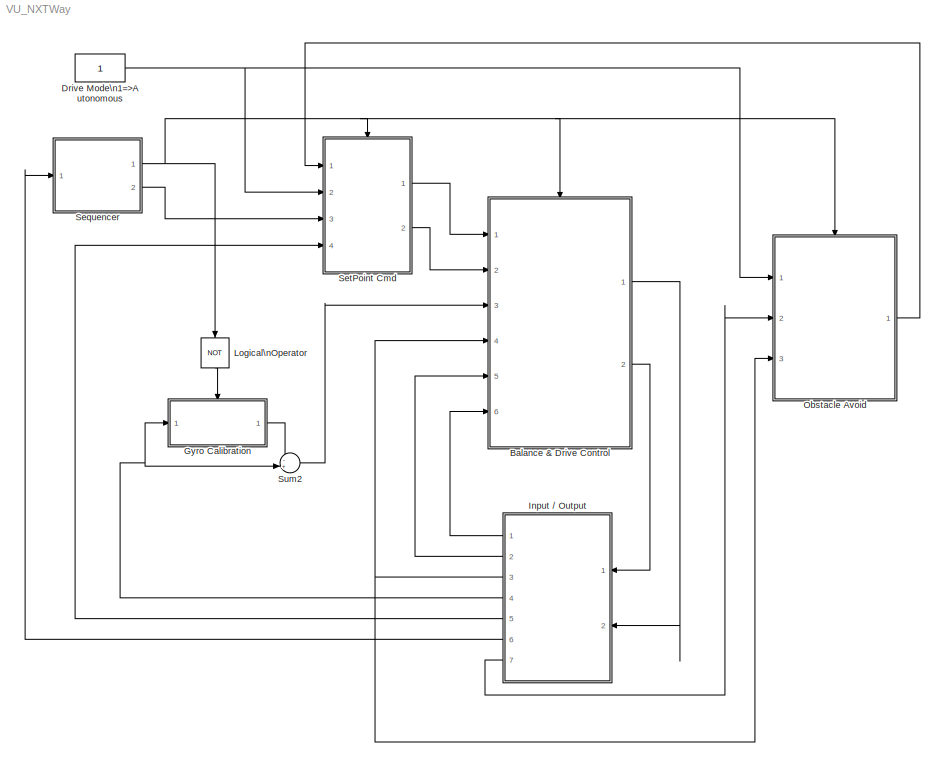
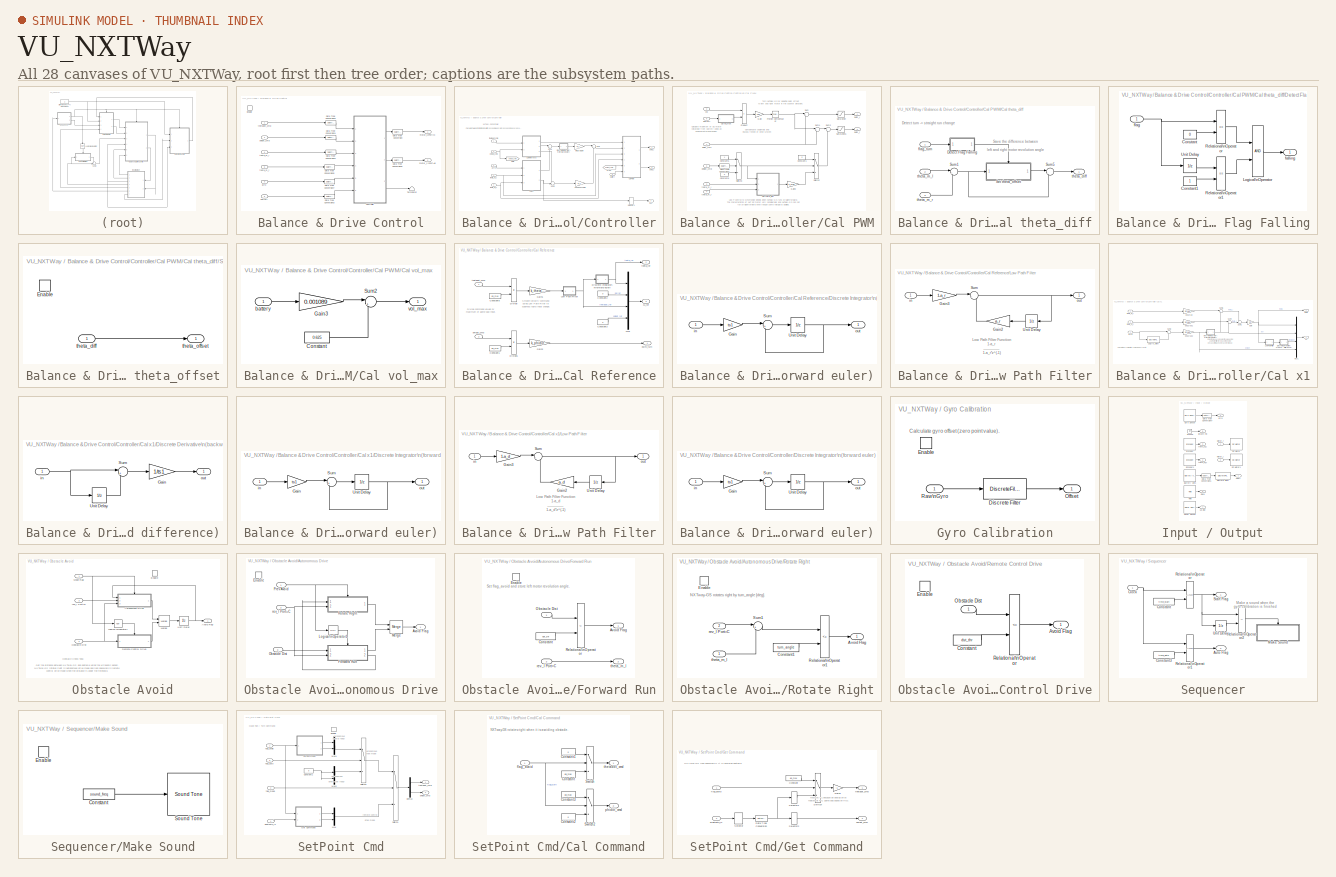
[diagram: thumbnail index - all 28 canvases of the model, root first then tree order]
MODEL VU_NXTWay
KIND model
CONFIG PreLoadFcn = param_nxtway_gs
BLOCK [SubSystem] Balance & Drive Control
  Ports = [6, 2, 1]
  RequestExecContextInheritance = off
  SID = 1
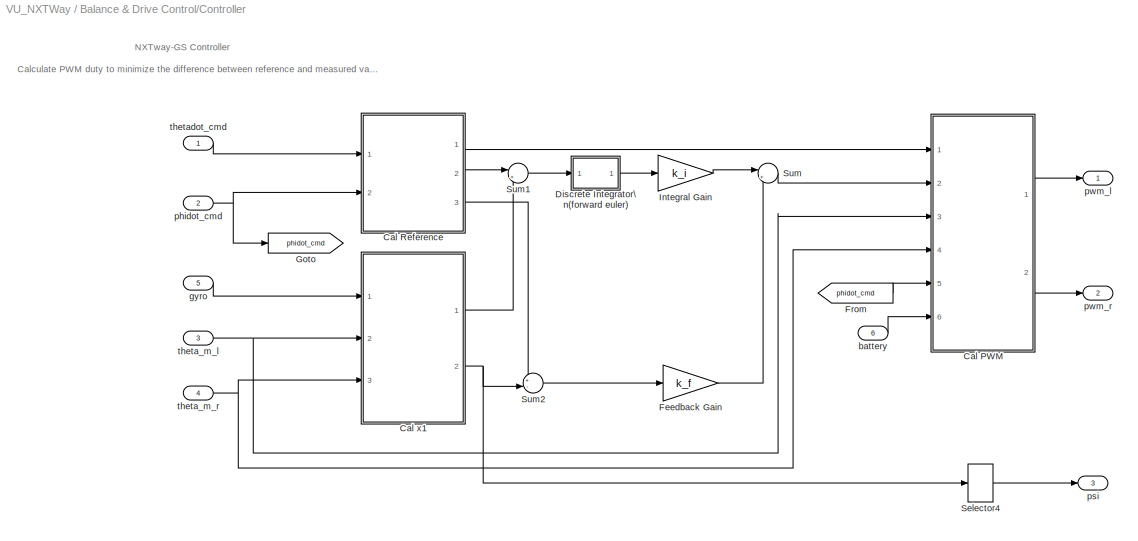
BLOCK [SubSystem] Balance & Drive Control/Controller
  Ports = [6, 3]
  RequestExecContextInheritance = off
  SID = 16
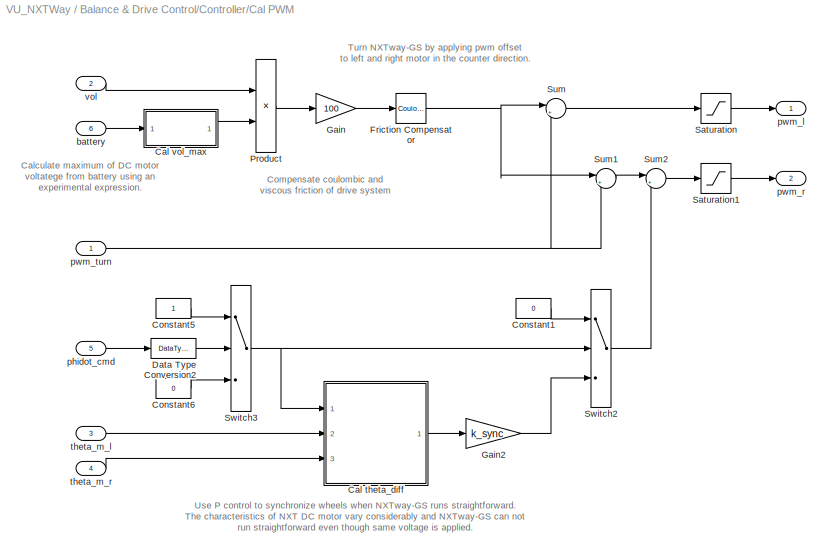
BLOCK [SubSystem] Balance & Drive Control/Controller/Cal PWM
  Ports = [6, 2]
  RequestExecContextInheritance = off
  SID = 22
BLOCK [SubSystem] Balance & Drive Control/Controller/Cal PWM/Cal theta_diff
  Ports = [3, 1]
  RequestExecContextInheritance = off
  SID = 29
BLOCK [SubSystem] Balance & Drive Control/Controller/Cal PWM/Cal theta_diff/Detect Flag Falling
  Ports = [1, 1]
  RequestExecContextInheritance = off
  SID = 33
BLOCK [Constant] Balance & Drive Control/Controller/Cal PWM/Cal theta_diff/Detect Flag Falling/Constant
  AttributesFormatString = DataType = %<OutDataTypeStr>
  OutDataTypeStr = boolean
  SID = 35
  SampleTime = -1
  Value = 0
  VectorParams1D = off
BLOCK [Constant] Balance & Drive Control/Controller/Cal PWM/Cal theta_diff/Detect Flag Falling/Constant1
  AttributesFormatString = DataType = %<OutDataTypeStr>
  OutDataTypeStr = boolean
  SID = 36
  SampleTime = -1
  VectorParams1D = off
BLOCK [Logic] Balance & Drive Control/Controller/Cal PWM/Cal theta_diff/Detect Flag Falling/Logical\nOperator
  AllPortsSameDT = off
  OutDataTypeStr = boolean
  Ports = [2, 1]
  SID = 37
BLOCK [RelationalOperator] Balance & Drive Control/Controller/Cal PWM/Cal theta_diff/Detect Flag Falling/Relational\nOperator
  InputSameDT = off
  Operator = ==
  OutDataTypeStr = boolean
  Ports = [2, 1]
  SID = 38
BLOCK [RelationalOperator] Balance & Drive Control/Controller/Cal PWM/Cal theta_diff/Detect Flag Falling/Relational\nOperator1
  InputSameDT = off
  Operator = ==
  OutDataTypeStr = boolean
  Ports = [2, 1]
  SID = 39
BLOCK [UnitDelay] Balance & Drive Control/Controller/Cal PWM/Cal theta_diff/Detect Flag Falling/Unit Delay
  SID = 40
  SampleTime = -1
BLOCK [Outport] Balance & Drive Control/Controller/Cal PWM/Cal theta_diff/Detect Flag Falling/falling
  IconDisplay = Port number
  SID = 41
BLOCK [Inport] Balance & Drive Control/Controller/Cal PWM/Cal theta_diff/Detect Flag Falling/flag
  IconDisplay = Port number
  SID = 34
BLOCK [SubSystem] Balance & Drive Control/Controller/Cal PWM/Cal theta_diff/Set theta_offset
  Ports = [1, 1, 1]
  RequestExecContextInheritance = off
  SID = 42
BLOCK [EnablePort] Balance & Drive Control/Controller/Cal PWM/Cal theta_diff/Set theta_offset/Enable
  Ports = []
  SID = 44
BLOCK [Inport] Balance & Drive Control/Controller/Cal PWM/Cal theta_diff/Set theta_offset/theta_diff
  IconDisplay = Port number
  SID = 43
BLOCK [Outport] Balance & Drive Control/Controller/Cal PWM/Cal theta_diff/Set theta_offset/theta_offset
  IconDisplay = Port number
  SID = 45
BLOCK [Sum] Balance & Drive Control/Controller/Cal PWM/Cal theta_diff/Sum1
  IconShape = round
  InputSameDT = off
  Inputs = |+-
  Ports = [2, 1]
  SID = 46
  SaturateOnIntegerOverflow = off
BLOCK [Sum] Balance & Drive Control/Controller/Cal PWM/Cal theta_diff/Sum5
  IconShape = round
  InputSameDT = off
  Inputs = |-+
  Ports = [2, 1]
  SID = 47
  SaturateOnIntegerOverflow = off
BLOCK [Inport] Balance & Drive Control/Controller/Cal PWM/Cal theta_diff/flag_turn
  IconDisplay = Port number
  SID = 30
BLOCK [Outport] Balance & Drive Control/Controller/Cal PWM/Cal theta_diff/theta_diff
  IconDisplay = Port number
  SID = 48
BLOCK [Inport] Balance & Drive Control/Controller/Cal PWM/Cal theta_diff/theta_m_l
  IconDisplay = Port number
  Port = 2
  SID = 31
BLOCK [Inport] Balance & Drive Control/Controller/Cal PWM/Cal theta_diff/theta_m_r
  IconDisplay = Port number
  Port = 3
  SID = 32
BLOCK [SubSystem] Balance & Drive Control/Controller/Cal PWM/Cal vol_max
  Ports = [1, 1]
  RequestExecContextInheritance = off
  SID = 49
BLOCK [Constant] Balance & Drive Control/Controller/Cal PWM/Cal vol_max/Constant
  AttributesFormatString = DataType = %<OutDataTypeStr>
  OutDataTypeStr = single
  SID = 51
  SampleTime = -1
  Value = 0.625
BLOCK [Gain] Balance & Drive Control/Controller/Cal PWM/Cal vol_max/Gain3
  Gain = 0.001089
  SID = 52
  SaturateOnIntegerOverflow = off
BLOCK [Sum] Balance & Drive Control/Controller/Cal PWM/Cal vol_max/Sum2
  IconShape = round
  InputSameDT = off
  Inputs = |+-
  Ports = [2, 1]
  SID = 53
  SaturateOnIntegerOverflow = off
BLOCK [Inport] Balance & Drive Control/Controller/Cal PWM/Cal vol_max/battery
  IconDisplay = Port number
  SID = 50
BLOCK [Outport] Balance & Drive Control/Controller/Cal PWM/Cal vol_max/vol_max
  IconDisplay = Port number
  SID = 54
BLOCK [Constant] Balance & Drive Control/Controller/Cal PWM/Constant1
  AttributesFormatString = DataType = %<OutDataTypeStr>
  OutDataTypeStr = single
  SID = 55
  SampleTime = -1
  Value = 0
BLOCK [Constant] Balance & Drive Control/Controller/Cal PWM/Constant5
  AttributesFormatString = DataType = %<OutDataTypeStr>
  OutDataTypeStr = boolean
  SID = 56
  SampleTime = -1
BLOCK [Constant] Balance & Drive Control/Controller/Cal PWM/Constant6
  AttributesFormatString = DataType = %<OutDataTypeStr>
  OutDataTypeStr = boolean
  SID = 57
  SampleTime = -1
  Value = 0
BLOCK [DataTypeConversion] Balance & Drive Control/Controller/Cal PWM/Data Type Conversion2
  AttributesFormatString = Round = %<RndMeth>
  OutDataTypeStr = int8
  RndMeth = Simplest
  SID = 58
  SaturateOnIntegerOverflow = off
BLOCK [Reference] Balance & Drive Control/Controller/Cal PWM/Friction Compensator  REF=simulink/Discontinuities/Coulomb &\nViscous Friction
  AttributesFormatString = gain = %<gain>\\noffset = %<offset>
  FunctionWithSeparateData = off
  Ports = [1, 1]
  RTWMemSecDataConstants = Inherit from model
  RTWMemSecDataInternal = Inherit from model
  RTWMemSecDataParameters = Inherit from model
  RTWMemSecFuncExecute = Inherit from model
  RTWMemSecFuncInitTerm = Inherit from model
  SID = 59
  ShowPortLabels = FromPortIcon
  SourceBlock = simulink/Discontinuities/Coulomb &\nViscous Friction
  SourceProductBaseCode = SL
  SourceProductName = Simulink
  SourceType = Coulombic and Viscous Friction
  SystemSampleTime = -1
  gain = pwm_gain
  offset = pwm_offset
BLOCK [Gain] Balance & Drive Control/Controller/Cal PWM/Gain
  Gain = 100
  SID = 60
  SaturateOnIntegerOverflow = off
BLOCK [Gain] Balance & Drive Control/Controller/Cal PWM/Gain2
  Gain = k_sync
  SID = 61
  SaturateOnIntegerOverflow = off
BLOCK [Product] Balance & Drive Control/Controller/Cal PWM/Product
  InputSameDT = off
  Inputs = */
  Ports = [2, 1]
  RndMeth = Simplest
  SID = 62
  SaturateOnIntegerOverflow = off
BLOCK [Saturate] Balance & Drive Control/Controller/Cal PWM/Saturation
  AttributesFormatString = max = %<UpperLimit>\\nmin = %<LowerLimit>
  InputPortMap = u0
  LowerLimit = -100
  Ports = [1, 1]
  SID = 63
  UpperLimit = 100
BLOCK [Saturate] Balance & Drive Control/Controller/Cal PWM/Saturation1
  AttributesFormatString = max = %<UpperLimit>\\nmin = %<LowerLimit>
  InputPortMap = u0
  LowerLimit = -100
  Ports = [1, 1]
  SID = 64
  UpperLimit = 100
BLOCK [Sum] Balance & Drive Control/Controller/Cal PWM/Sum
  IconShape = round
  InputSameDT = off
  Inputs = |++
  Ports = [2, 1]
  SID = 65
  SaturateOnIntegerOverflow = off
BLOCK [Sum] Balance & Drive Control/Controller/Cal PWM/Sum1
  IconShape = round
  InputSameDT = off
  Inputs = |+-
  Ports = [2, 1]
  SID = 66
  SaturateOnIntegerOverflow = off
BLOCK [Sum] Balance & Drive Control/Controller/Cal PWM/Sum2
  IconShape = round
  InputSameDT = off
  Inputs = |++
  Ports = [2, 1]
  SID = 67
  SaturateOnIntegerOverflow = off
BLOCK [Switch] Balance & Drive Control/Controller/Cal PWM/Switch2
  Criteria = u2 ~= 0
  InputSameDT = off
  SID = 68
  SaturateOnIntegerOverflow = off
BLOCK [Switch] Balance & Drive Control/Controller/Cal PWM/Switch3
  Criteria = u2 ~= 0
  InputSameDT = off
  SID = 69
  SaturateOnIntegerOverflow = off
BLOCK [Inport] Balance & Drive Control/Controller/Cal PWM/battery
  IconDisplay = Port number
  Port = 6
  SID = 28
BLOCK [Inport] Balance & Drive Control/Controller/Cal PWM/phidot_cmd
  IconDisplay = Port number
  Port = 5
  SID = 27
BLOCK [Outport] Balance & Drive Control/Controller/Cal PWM/pwm_l
  IconDisplay = Port number
  SID = 70
BLOCK [Outport] Balance & Drive Control/Controller/Cal PWM/pwm_r
  IconDisplay = Port number
  Port = 2
  SID = 71
BLOCK [Inport] Balance & Drive Control/Controller/Cal PWM/pwm_turn
  IconDisplay = Port number
  SID = 23
BLOCK [Inport] Balance & Drive Control/Controller/Cal PWM/theta_m_l
  IconDisplay = Port number
  Port = 3
  SID = 25
BLOCK [Inport] Balance & Drive Control/Controller/Cal PWM/theta_m_r
  IconDisplay = Port number
  Port = 4
  SID = 26
BLOCK [Inport] Balance & Drive Control/Controller/Cal PWM/vol
  IconDisplay = Port number
  Port = 2
  SID = 24
BLOCK [SubSystem] Balance & Drive Control/Controller/Cal Reference
  Ports = [2, 3]
  RequestExecContextInheritance = off
  SID = 72
BLOCK [Constant] Balance & Drive Control/Controller/Cal Reference/Constant1
  AttributesFormatString = DataType = %<OutDataTypeStr>
  OutDataTypeStr = int8
  SID = 75
  SampleTime = -1
  Value = gp_max
  VectorParams1D = off
BLOCK [Constant] Balance & Drive Control/Controller/Cal Reference/Constant2
  AttributesFormatString = DataType = %<OutDataTypeStr>
  OutDataTypeStr = single
  SID = 76
  SampleTime = -1
  Value = 0
  VectorParams1D = off
BLOCK [Constant] Balance & Drive Control/Controller/Cal Reference/Constant3
  AttributesFormatString = DataType = %<OutDataTypeStr>
  OutDataTypeStr = single
  SID = 77
  SampleTime = -1
  Value = 0
  VectorParams1D = off
BLOCK [Constant] Balance & Drive Control/Controller/Cal Reference/Constant6
  AttributesFormatString = DataType = %<OutDataTypeStr>
  OutDataTypeStr = int8
  SID = 78
  SampleTime = -1
  Value = gp_max
  VectorParams1D = off
BLOCK [SubSystem] Balance & Drive Control/Controller/Cal Reference/Discrete Integrator\n(forward euler)
  Ports = [1, 1]
  RequestExecContextInheritance = off
  SID = 79
BLOCK [Gain] Balance & Drive Control/Controller/Cal Reference/Discrete Integrator\n(forward euler)/Gain
  Gain = ts1
  SID = 81
  SaturateOnIntegerOverflow = off
BLOCK [Sum] Balance & Drive Control/Controller/Cal Reference/Discrete Integrator\n(forward euler)/Sum
  IconShape = round
  InputSameDT = off
  Inputs = |++
  Ports = [2, 1]
  SID = 82
  SaturateOnIntegerOverflow = off
BLOCK [UnitDelay] Balance & Drive Control/Controller/Cal Reference/Discrete Integrator\n(forward euler)/Unit Delay
  SID = 83
  SampleTime = -1
BLOCK [Inport] Balance & Drive Control/Controller/Cal Reference/Discrete Integrator\n(forward euler)/in
  IconDisplay = Port number
  SID = 80
BLOCK [Outport] Balance & Drive Control/Controller/Cal Reference/Discrete Integrator\n(forward euler)/out
  IconDisplay = Port number
  SID = 84
BLOCK [Product] Balance & Drive Control/Controller/Cal Reference/Divide
  InputSameDT = off
  Inputs = */
  Ports = [2, 1]
  RndMeth = Simplest
  SID = 85
  SaturateOnIntegerOverflow = off
BLOCK [Product] Balance & Drive Control/Controller/Cal Reference/Divide1
  InputSameDT = off
  Inputs = */
  Ports = [2, 1]
  RndMeth = Simplest
  SID = 86
  SaturateOnIntegerOverflow = off
BLOCK [Gain] Balance & Drive Control/Controller/Cal Reference/Gain1
  Gain = k_thetadot
  SID = 87
  SaturateOnIntegerOverflow = off
BLOCK [Gain] Balance & Drive Control/Controller/Cal Reference/Gain2
  Gain = k_phidot
  SID = 88
  SaturateOnIntegerOverflow = off
BLOCK [SubSystem] Balance & Drive Control/Controller/Cal Reference/Low Path Filter
  Ports = [1, 1]
  RequestExecContextInheritance = off
  SID = 89
BLOCK [Gain] Balance & Drive Control/Controller/Cal Reference/Low Path Filter/Gain2
  Gain = a_r
  SID = 91
  SaturateOnIntegerOverflow = off
BLOCK [Gain] Balance & Drive Control/Controller/Cal Reference/Low Path Filter/Gain3
  Gain = 1-a_r
  SID = 92
  SaturateOnIntegerOverflow = off
BLOCK [Sum] Balance & Drive Control/Controller/Cal Reference/Low Path Filter/Sum
  IconShape = round
  InputSameDT = off
  Inputs = |++
  Ports = [2, 1]
  SID = 93
  SaturateOnIntegerOverflow = off
BLOCK [UnitDelay] Balance & Drive Control/Controller/Cal Reference/Low Path Filter/Unit Delay
  SID = 94
  SampleTime = -1
BLOCK [Inport] Balance & Drive Control/Controller/Cal Reference/Low Path Filter/in
  IconDisplay = Port number
  SID = 90
BLOCK [Outport] Balance & Drive Control/Controller/Cal Reference/Low Path Filter/out
  IconDisplay = Port number
  SID = 95
BLOCK [Mux] Balance & Drive Control/Controller/Cal Reference/Mux
  DisplayOption = bar
  Ports = [4, 1]
  SID = 96
BLOCK [Inport] Balance & Drive Control/Controller/Cal Reference/phidot_cmd
  IconDisplay = Port number
  Port = 2
  SID = 74
BLOCK [Outport] Balance & Drive Control/Controller/Cal Reference/pwm_turn
  IconDisplay = Port number
  SID = 97
BLOCK [Outport] Balance & Drive Control/Controller/Cal Reference/theta_ref
  IconDisplay = Port number
  Port = 2
  SID = 98
BLOCK [Inport] Balance & Drive Control/Controller/Cal Reference/thetadot_cmd
  IconDisplay = Port number
  SID = 73
BLOCK [Outport] Balance & Drive Control/Controller/Cal Reference/x1_ref
  IconDisplay = Port number
  Port = 3
  SID = 99
BLOCK [SubSystem] Balance & Drive Control/Controller/Cal x1
  Ports = [3, 2]
  RequestExecContextInheritance = off
  SID = 100
BLOCK [DiscreteFilter] Balance & Drive Control/Controller/Cal x1/Cal gyro_offset
  Denominator = [1 -a_gd]
  InputPortMap = u0
  Numerator = [1-a_gd]
  Ports = [1, 1]
  SID = 464
BLOCK [SubSystem] Balance & Drive Control/Controller/Cal x1/Discrete Derivative\n(backward difference)
  Ports = [1, 1]
  RequestExecContextInheritance = off
  SID = 113
BLOCK [Gain] Balance & Drive Control/Controller/Cal x1/Discrete Derivative\n(backward difference)/Gain
  Gain = 1/ts1
  SID = 115
  SaturateOnIntegerOverflow = off
BLOCK [Sum] Balance & Drive Control/Controller/Cal x1/Discrete Derivative\n(backward difference)/Sum
  IconShape = round
  InputSameDT = off
  Inputs = |+-
  Ports = [2, 1]
  SID = 116
  SaturateOnIntegerOverflow = off
BLOCK [UnitDelay] Balance & Drive Control/Controller/Cal x1/Discrete Derivative\n(backward difference)/Unit Delay
  SID = 117
  SampleTime = -1
BLOCK [Inport] Balance & Drive Control/Controller/Cal x1/Discrete Derivative\n(backward difference)/in
  IconDisplay = Port number
  SID = 114
BLOCK [Outport] Balance & Drive Control/Controller/Cal x1/Discrete Derivative\n(backward difference)/out
  IconDisplay = Port number
  SID = 118
BLOCK [SubSystem] Balance & Drive Control/Controller/Cal x1/Discrete Integrator\n(forward euler)
  Ports = [1, 1]
  RequestExecContextInheritance = off
  SID = 119
BLOCK [Gain] Balance & Drive Control/Controller/Cal x1/Discrete Integrator\n(forward euler)/Gain
  Gain = ts1
  SID = 121
  SaturateOnIntegerOverflow = off
BLOCK [Sum] Balance & Drive Control/Controller/Cal x1/Discrete Integrator\n(forward euler)/Sum
  IconShape = round
  InputSameDT = off
  Inputs = |++
  Ports = [2, 1]
  SID = 122
  SaturateOnIntegerOverflow = off
BLOCK [UnitDelay] Balance & Drive Control/Controller/Cal x1/Discrete Integrator\n(forward euler)/Unit Delay
  SID = 123
  SampleTime = -1
BLOCK [Inport] Balance & Drive Control/Controller/Cal x1/Discrete Integrator\n(forward euler)/in
  IconDisplay = Port number
  SID = 120
BLOCK [Outport] Balance & Drive Control/Controller/Cal x1/Discrete Integrator\n(forward euler)/out
  IconDisplay = Port number
  SID = 124
BLOCK [Gain] Balance & Drive Control/Controller/Cal x1/Gain
  Gain = 1/2
  SID = 125
  SaturateOnIntegerOverflow = off
BLOCK [SubSystem] Balance & Drive Control/Controller/Cal x1/Low Path Filter
  Ports = [1, 1]
  RequestExecContextInheritance = off
  SID = 126
BLOCK [Gain] Balance & Drive Control/Controller/Cal x1/Low Path Filter/Gain2
  Gain = a_d
  SID = 128
  SaturateOnIntegerOverflow = off
BLOCK [Gain] Balance & Drive Control/Controller/Cal x1/Low Path Filter/Gain3
  Gain = 1-a_d
  SID = 129
  SaturateOnIntegerOverflow = off
BLOCK [Sum] Balance & Drive Control/Controller/Cal x1/Low Path Filter/Sum
  IconShape = round
  InputSameDT = off
  Inputs = |++
  Ports = [2, 1]
  SID = 130
  SaturateOnIntegerOverflow = off
BLOCK [UnitDelay] Balance & Drive Control/Controller/Cal x1/Low Path Filter/Unit Delay
  SID = 131
  SampleTime = -1
BLOCK [Inport] Balance & Drive Control/Controller/Cal x1/Low Path Filter/in
  IconDisplay = Port number
  SID = 127
BLOCK [Outport] Balance & Drive Control/Controller/Cal x1/Low Path Filter/out
  IconDisplay = Port number
  SID = 132
BLOCK [Mux] Balance & Drive Control/Controller/Cal x1/Mux1
  DisplayOption = bar
  Ports = [4, 1]
  SID = 133
BLOCK [Sum] Balance & Drive Control/Controller/Cal x1/Sum1
  IconShape = round
  InputSameDT = off
  Inputs = ++|
  Ports = [2, 1]
  SID = 134
  SaturateOnIntegerOverflow = off
BLOCK [Sum] Balance & Drive Control/Controller/Cal x1/Sum2
  IconShape = round
  InputSameDT = off
  Inputs = |+-
  Ports = [2, 1]
  SID = 463
  SaturateOnIntegerOverflow = off
BLOCK [Sum] Balance & Drive Control/Controller/Cal x1/Sum4
  IconShape = round
  InputSameDT = off
  Inputs = |++
  Ports = [2, 1]
  SID = 136
  SaturateOnIntegerOverflow = off
BLOCK [Sum] Balance & Drive Control/Controller/Cal x1/Sum6
  IconShape = round
  InputSameDT = off
  Inputs = |++
  Ports = [2, 1]
  SID = 137
  SaturateOnIntegerOverflow = off
BLOCK [Gain] Balance & Drive Control/Controller/Cal x1/deg2rad
  Gain = pi/180
  SID = 138
  SaturateOnIntegerOverflow = off
BLOCK [Gain] Balance & Drive Control/Controller/Cal x1/deg2rad1
  Gain = pi/180
  SID = 139
  SaturateOnIntegerOverflow = off
BLOCK [Gain] Balance & Drive Control/Controller/Cal x1/deg2rad2
  Gain = pi/180
  SID = 140
  SaturateOnIntegerOverflow = off
BLOCK [Inport] Balance & Drive Control/Controller/Cal x1/gyro
  IconDisplay = Port number
  SID = 101
BLOCK [Outport] Balance & Drive Control/Controller/Cal x1/theta
  IconDisplay = Port number
  SID = 141
BLOCK [Inport] Balance & Drive Control/Controller/Cal x1/theta_m_l
  IconDisplay = Port number
  Port = 2
  SID = 102
BLOCK [Inport] Balance & Drive Control/Controller/Cal x1/theta_m_r
  IconDisplay = Port number
  Port = 3
  SID = 103
BLOCK [Outport] Balance & Drive Control/Controller/Cal x1/x1
  IconDisplay = Port number
  Port = 2
  SID = 142
BLOCK [SubSystem] Balance & Drive Control/Controller/Discrete Integrator\n(forward euler)
  Ports = [1, 1]
  RequestExecContextInheritance = off
  SID = 144
BLOCK [Gain] Balance & Drive Control/Controller/Discrete Integrator\n(forward euler)/Gain
  Gain = ts1
  SID = 146
  SaturateOnIntegerOverflow = off
BLOCK [Sum] Balance & Drive Control/Controller/Discrete Integrator\n(forward euler)/Sum
  IconShape = round
  InputSameDT = off
  Inputs = |++
  Ports = [2, 1]
  SID = 147
  SaturateOnIntegerOverflow = off
BLOCK [UnitDelay] Balance & Drive Control/Controller/Discrete Integrator\n(forward euler)/Unit Delay
  SID = 148
  SampleTime = -1
BLOCK [Inport] Balance & Drive Control/Controller/Discrete Integrator\n(forward euler)/in
  IconDisplay = Port number
  SID = 145
BLOCK [Outport] Balance & Drive Control/Controller/Discrete Integrator\n(forward euler)/out
  IconDisplay = Port number
  SID = 149
BLOCK [Gain] Balance & Drive Control/Controller/Feedback Gain
  Gain = k_f
  Multiplication = Matrix(K*u)
  SID = 150
  SaturateOnIntegerOverflow = off
BLOCK [From] Balance & Drive Control/Controller/From
  CloseFcn = tagdialog Close
  GotoTag = phidot_cmd
  SID = 151
BLOCK [Goto] Balance & Drive Control/Controller/Goto
  GotoTag = phidot_cmd
  SID = 152
BLOCK [Gain] Balance & Drive Control/Controller/Integral Gain
  Gain = k_i
  Multiplication = Matrix(K*u)
  SID = 153
  SaturateOnIntegerOverflow = off
BLOCK [Selector] Balance & Drive Control/Controller/Selector4
  IndexOptions = Index vector (dialog)
  Indices = 2
  InputPortWidth = 4
  OutputSizes = 1
  Ports = [1, 1]
  SID = 154
BLOCK [Sum] Balance & Drive Control/Controller/Sum
  IconShape = round
  InputSameDT = off
  Inputs = |++
  Ports = [2, 1]
  SID = 155
  SaturateOnIntegerOverflow = off
BLOCK [Sum] Balance & Drive Control/Controller/Sum1
  IconShape = round
  InputSameDT = off
  Inputs = |+-
  Ports = [2, 1]
  SID = 156
  SaturateOnIntegerOverflow = off
BLOCK [Sum] Balance & Drive Control/Controller/Sum2
  IconShape = round
  InputSameDT = off
  Inputs = +-|
  Ports = [2, 1]
  SID = 157
  SaturateOnIntegerOverflow = off
BLOCK [Inport] Balance & Drive Control/Controller/battery
  IconDisplay = Port number
  Port = 6
  SID = 323
BLOCK [Inport] Balance & Drive Control/Controller/gyro
  IconDisplay = Port number
  Port = 5
  SID = 21
BLOCK [Inport] Balance & Drive Control/Controller/phidot_cmd
  IconDisplay = Port number
  Port = 2
  SID = 18
BLOCK [Outport] Balance & Drive Control/Controller/psi
  IconDisplay = Port number
  Port = 3
  SID = 160
BLOCK [Outport] Balance & Drive Control/Controller/pwm_l
  IconDisplay = Port number
  SID = 158
BLOCK [Outport] Balance & Drive Control/Controller/pwm_r
  IconDisplay = Port number
  Port = 2
  SID = 159
BLOCK [Inport] Balance & Drive Control/Controller/theta_m_l
  IconDisplay = Port number
  Port = 3
  SID = 19
BLOCK [Inport] Balance & Drive Control/Controller/theta_m_r
  IconDisplay = Port number
  Port = 4
  SID = 20
BLOCK [Inport] Balance & Drive Control/Controller/thetadot_cmd
  IconDisplay = Port number
  SID = 17
BLOCK [DataTypeConversion] Balance & Drive Control/Data Type Conversion
  AttributesFormatString = Round = %<RndMeth>
  OutDataTypeStr = int8
  RndMeth = Simplest
  SID = 176
  SaturateOnIntegerOverflow = off
BLOCK [DataTypeConversion] Balance & Drive Control/Data Type Conversion1
  AttributesFormatString = Round = %<RndMeth>
  OutDataTypeStr = single
  RndMeth = Simplest
  SID = 177
  SaturateOnIntegerOverflow = off
BLOCK [DataTypeConversion] Balance & Drive Control/Data Type Conversion2
  AttributesFormatString = Round = %<RndMeth>
  OutDataTypeStr = single
  RndMeth = Simplest
  SID = 178
  SaturateOnIntegerOverflow = off
BLOCK [DataTypeConversion] Balance & Drive Control/Data Type Conversion3
  AttributesFormatString = Round = %<RndMeth>
  OutDataTypeStr = single
  RndMeth = Simplest
  SID = 350
  SaturateOnIntegerOverflow = off
BLOCK [DataTypeConversion] Balance & Drive Control/Data Type Conversion4
  AttributesFormatString = Round = %<RndMeth>
  OutDataTypeStr = single
  RndMeth = Simplest
  SID = 352
  SaturateOnIntegerOverflow = off
BLOCK [DataTypeConversion] Balance & Drive Control/Data Type Conversion5
  AttributesFormatString = Round = %<RndMeth>
  OutDataTypeStr = single
  RndMeth = Simplest
  SID = 353
  SaturateOnIntegerOverflow = off
BLOCK [DataTypeConversion] Balance & Drive Control/Data Type Conversion6
  AttributesFormatString = Round = %<RndMeth>
  OutDataTypeStr = int8
  RndMeth = Simplest
  SID = 182
  SaturateOnIntegerOverflow = off
BLOCK [DataTypeConversion] Balance & Drive Control/Data Type Conversion7
  AttributesFormatString = Round = %<RndMeth>
  OutDataTypeStr = single
  RndMeth = Simplest
  SID = 408
  SaturateOnIntegerOverflow = off
BLOCK [EnablePort] Balance & Drive Control/Enable
  Ports = []
  SID = 2
BLOCK [Terminator] Balance & Drive Control/Terminator
  SID = 420
BLOCK [Inport] Balance & Drive Control/battery
  IconDisplay = Port number
  Port = 6
  SID = 324
BLOCK [Inport] Balance & Drive Control/gyro
  IconDisplay = Port number
  Port = 3
  SID = 259
BLOCK [Outport] Balance & Drive Control/motor_l\nPort=C
  IconDisplay = Port number
  SID = 260
BLOCK [Outport] Balance & Drive Control/motor_r\nPort=B
  IconDisplay = Port number
  Port = 2
  SID = 298
BLOCK [Inport] Balance & Drive Control/phidot_cmd
  IconDisplay = Port number
  Port = 2
  SID = 268
BLOCK [Inport] Balance & Drive Control/theta_m_l
  IconDisplay = Port number
  Port = 4
  SID = 257
BLOCK [Inport] Balance & Drive Control/theta_m_r
  IconDisplay = Port number
  Port = 5
  SID = 258
BLOCK [Inport] Balance & Drive Control/thetadot_cmd
  IconDisplay = Port number
  SID = 255
BLOCK [Constant] Drive Mode\n1=>Autonomous
  AttributesFormatString = DataType = %<OutDataTypeStr>
  OutDataTypeStr = boolean
  SID = 358
  SampleTime = -1
BLOCK [SubSystem] Gyro Calibration
  Ports = [1, 1, 1]
  RequestExecContextInheritance = off
  SID = 225
  TreatAsAtomicUnit = on
BLOCK [DiscreteFilter] Gyro Calibration/Discrete Filter
  Denominator = [1 -a_gc]
  InputPortMap = u0
  Numerator = [1-a_gc]
  Ports = [1, 1]
  SID = 238
BLOCK [EnablePort] Gyro Calibration/Enable
  Ports = []
  SID = 226
BLOCK [Outport] Gyro Calibration/Offset
  IconDisplay = Port number
  SID = 240
BLOCK [Inport] Gyro Calibration/Raw\nGyro
  IconDisplay = Port number
  SID = 239
BLOCK [SubSystem] Input // Output
  Ports = [2, 7]
  RequestExecContextInheritance = off
  SID = 341
BLOCK [Reference] Input // Output/Battery Volts  REF=lego_nxt_lib/Battery Volts  (lib defined in mdl_3d9a4c0387f8)
  Ports = [0, 1]
  SID = 457
  SourceBlock = lego_nxt_lib/Battery Volts
  SourceType = Battery Voltage
  st = ts3
BLOCK [Outport] Input // Output/Btooth Rx
  IconDisplay = Port number
  Port = 5
  SID = 343
BLOCK [Outport] Input // Output/Clock
  IconDisplay = Port number
  Port = 6
  SID = 364
BLOCK [Reference] Input // Output/DC Motor  REF=lego_nxt_lib/DC Motor  (lib defined in mdl_3d9a4c0387f8)
  Ports = [1]
  SID = 459
  SourceBlock = lego_nxt_lib/DC Motor
  SourceType = Servo Motor (Simple)
  brake = Brake
  port = Port C
BLOCK [Reference] Input // Output/DC Motor1  REF=lego_nxt_lib/DC Motor  (lib defined in mdl_3d9a4c0387f8)
  Ports = [1]
  SID = 460
  SourceBlock = lego_nxt_lib/DC Motor
  SourceType = Servo Motor (Simple)
  brake = Brake
  port = Port B
BLOCK [DataTypeConversion] Input // Output/Data Type Conversion1
  AttributesFormatString = Round = %<RndMeth>
  OutDataTypeStr = single
  RndMeth = Simplest
  SID = 467
  SaturateOnIntegerOverflow = off
BLOCK [DataTypeConversion] Input // Output/Data Type Conversion7
  AttributesFormatString = Round = %<RndMeth>
  OutDataTypeStr = single
  RndMeth = Simplest
  SID = 462
  SaturateOnIntegerOverflow = off
BLOCK [DiscreteFilter] Input // Output/Discrete Filter
  Denominator = [1 -a_b]
  InputPortMap = u0
  Numerator = [1-a_b]
  Ports = [1, 1]
  SID = 466
BLOCK [Reference] Input // Output/Encoder  REF=lego_nxt_lib/Encoder  (lib defined in mdl_3d9a4c0387f8)
  Ports = [0, 1]
  SID = 455
  SourceBlock = lego_nxt_lib/Encoder
  SourceType = Encoder
  port = Port B
  st = 0.004
BLOCK [Reference] Input // Output/Encoder1  REF=lego_nxt_lib/Encoder  (lib defined in mdl_3d9a4c0387f8)
  Ports = [0, 1]
  SID = 456
  SourceBlock = lego_nxt_lib/Encoder
  SourceType = Encoder
  port = Port C
  st = 0.004
BLOCK [Ground] Input // Output/Ground
  SID = 407
BLOCK [Reference] Input // Output/Gyro Sensor  REF=lego_nxt_lib/Gyro Sensor  (lib defined in mdl_3d9a4c0387f8)
  Ports = [0, 1]
  SID = 454
  SourceBlock = lego_nxt_lib/Gyro Sensor
  SourceType = HiTechnic Gyroscopic Sensor
  port = Port 3
  st = 0.004
BLOCK [Inport] Input // Output/Motor_r
  IconDisplay = Port number
  SID = 347
BLOCK [Reference] Input // Output/Sonar Sensor  REF=lego_nxt_lib/Sonar Sensor  (lib defined in mdl_3d9a4c0387f8)
  FunctionWithSeparateData = off
  Ports = [0, 1]
  RTWMemSecDataConstants = Inherit from model
  RTWMemSecDataInternal = Inherit from model
  RTWMemSecDataParameters = Inherit from model
  RTWMemSecFuncExecute = Inherit from model
  RTWMemSecFuncInitTerm = Inherit from model
  SID = 461
  ShowPortLabels = FromPortIcon
  SourceBlock = lego_nxt_lib/Sonar Sensor
  SourceType = Sonar Sensor
  SystemSampleTime = -1
  port = Port 2
  st = 0.02
  statussrc = Hide
BLOCK [Reference] Input // Output/Time  REF=lego_nxt_lib/Time  (lib defined in mdl_3d9a4c0387f8)
  Ports = [0, 1]
  SID = 458
  SourceBlock = lego_nxt_lib/Time
  SourceType = System Clock
  st = 0.004
BLOCK [Outport] Input // Output/US Dist
  IconDisplay = Port number
  Port = 7
  SID = 349
BLOCK [Outport] Input // Output/Vbatt
  IconDisplay = Port number
  SID = 346
BLOCK [Outport] Input // Output/gyro
  IconDisplay = Port number
  Port = 4
  SID = 342
BLOCK [Inport] Input // Output/motor_l
  IconDisplay = Port number
  Port = 2
  SID = 348
BLOCK [Outport] Input // Output/theta_m_l
  IconDisplay = Port number
  Port = 3
  SID = 344
BLOCK [Outport] Input // Output/theta_m_r
  IconDisplay = Port number
  Port = 2
  SID = 345
BLOCK [Logic] Logical\nOperator
  AllPortsSameDT = off
  Operator = NOT
  OutDataTypeStr = boolean
  Ports = [1, 1]
  SID = 234
BLOCK [SubSystem] Obstacle Avoid
  Ports = [3, 1, 1]
  RequestExecContextInheritance = off
  SID = 296
BLOCK [SubSystem] Obstacle Avoid/Autonomous Drive
  Ports = [3, 1, 1]
  RequestExecContextInheritance = off
  SID = 269
BLOCK [Outport] Obstacle Avoid/Autonomous Drive/Avoid Flag
  IconDisplay = Port number
  SID = 314
BLOCK [EnablePort] Obstacle Avoid/Autonomous Drive/Enable
  Ports = []
  SID = 270
BLOCK [SubSystem] Obstacle Avoid/Autonomous Drive/Forward Run
  Ports = [2, 2, 1]
  RequestExecContextInheritance = off
  SID = 272
BLOCK [Outport] Obstacle Avoid/Autonomous Drive/Forward Run/Avoid Flag
  IconDisplay = Port number
  SID = 310
BLOCK [Constant] Obstacle Avoid/Autonomous Drive/Forward Run/Constant
  AttributesFormatString = DataType = %<OutDataTypeStr>
  OutDataTypeStr = int32
  SID = 274
  SampleTime = 0.004
  Value = dst_thr
BLOCK [EnablePort] Obstacle Avoid/Autonomous Drive/Forward Run/Enable
  Ports = []
  SID = 273
BLOCK [Inport] Obstacle Avoid/Autonomous Drive/Forward Run/Obstacle Dist
  IconDisplay = Port number
  SID = 312
BLOCK [RelationalOperator] Obstacle Avoid/Autonomous Drive/Forward Run/Relational\nOperator
  InputSameDT = off
  Operator = <=
  OutDataTypeStr = boolean
  Ports = [2, 1]
  SID = 276
BLOCK [Inport] Obstacle Avoid/Autonomous Drive/Forward Run/rev_l Port=C
  IconDisplay = Port number
  Port = 2
  SID = 313
BLOCK [Outport] Obstacle Avoid/Autonomous Drive/Forward Run/theta_m_l
  IconDisplay = Port number
  Port = 2
  SID = 279
BLOCK [Logic] Obstacle Avoid/Autonomous Drive/Logical\nOperator1
  AllPortsSameDT = off
  Operator = NOT
  OutDataTypeStr = boolean
  Ports = [1, 1]
  SID = 280
BLOCK [Merge] Obstacle Avoid/Autonomous Drive/Merge
  Ports = [2, 1]
  SID = 309
BLOCK [Inport] Obstacle Avoid/Autonomous Drive/Obstacle Dist
  IconDisplay = Port number
  Port = 3
  SID = 317
BLOCK [Inport] Obstacle Avoid/Autonomous Drive/Prev Avoid
  IconDisplay = Port number
  SID = 320
BLOCK [SubSystem] Obstacle Avoid/Autonomous Drive/Rotate Right
  Ports = [2, 1, 1]
  RequestExecContextInheritance = off
  SID = 281
BLOCK [Outport] Obstacle Avoid/Autonomous Drive/Rotate Right/Avoid Flag
  IconDisplay = Port number
  SID = 311
BLOCK [Constant] Obstacle Avoid/Autonomous Drive/Rotate Right/Constant1
  AttributesFormatString = DataType = %<OutDataTypeStr>
  OutDataTypeStr = int32
  SID = 284
  SampleTime = 0.004
  Value = turn_angle
BLOCK [EnablePort] Obstacle Avoid/Autonomous Drive/Rotate Right/Enable
  Ports = []
  SID = 283
BLOCK [RelationalOperator] Obstacle Avoid/Autonomous Drive/Rotate Right/Relational\nOperator1
  InputSameDT = off
  Operator = <=
  OutDataTypeStr = boolean
  Ports = [2, 1]
  SID = 286
BLOCK [Sum] Obstacle Avoid/Autonomous Drive/Rotate Right/Sum1
  IconShape = round
  InputSameDT = off
  Inputs = |+-
  Ports = [2, 1]
  SID = 288
  SaturateOnIntegerOverflow = off
BLOCK [Inport] Obstacle Avoid/Autonomous Drive/Rotate Right/rev_l Port=C
  IconDisplay = Port number
  Port = 2
  SID = 315
BLOCK [Inport] Obstacle Avoid/Autonomous Drive/Rotate Right/theta_m_l
  IconDisplay = Port number
  SID = 282
BLOCK [Inport] Obstacle Avoid/Autonomous Drive/rev_l Port=C
  IconDisplay = Port number
  Port = 2
  SID = 318
BLOCK [Outport] Obstacle Avoid/Avoid Flag
  IconDisplay = Port number
  SID = 299
BLOCK [EnablePort] Obstacle Avoid/Enable
  Ports = []
  SID = 453
BLOCK [Logic] Obstacle Avoid/Logical\nOperator1
  AllPortsSameDT = off
  Operator = NOT
  OutDataTypeStr = boolean
  Ports = [1, 1]
  SID = 289
BLOCK [Merge] Obstacle Avoid/Merge
  Ports = [2, 1]
  SID = 308
BLOCK [Inport] Obstacle Avoid/Mode Flag
  IconDisplay = Port number
  SID = 297
BLOCK [Inport] Obstacle Avoid/Obstacle Dist
  IconDisplay = Port number
  Port = 2
  SID = 300
BLOCK [SubSystem] Obstacle Avoid/Remote Control Drive
  Ports = [1, 1, 1]
  RequestExecContextInheritance = off
  SID = 290
BLOCK [Outport] Obstacle Avoid/Remote Control Drive/Avoid Flag
  IconDisplay = Port number
  SID = 303
BLOCK [Constant] Obstacle Avoid/Remote Control Drive/Constant
  AttributesFormatString = DataType = %<OutDataTypeStr>
  OutDataTypeStr = int32
  SID = 292
  SampleTime = 0.004
  Value = dst_thr
BLOCK [EnablePort] Obstacle Avoid/Remote Control Drive/Enable
  Ports = []
  SID = 291
BLOCK [Inport] Obstacle Avoid/Remote Control Drive/Obstacle Dist
  IconDisplay = Port number
  SID = 301
BLOCK [RelationalOperator] Obstacle Avoid/Remote Control Drive/Relational\nOperator
  InputSameDT = off
  Operator = <=
  OutDataTypeStr = boolean
  Ports = [2, 1]
  SID = 294
BLOCK [UnitDelay] Obstacle Avoid/Unit Delay
  SID = 410
  SampleTime = -1
BLOCK [Inport] Obstacle Avoid/rev_l Port=C
  IconDisplay = Port number
  Port = 3
  SID = 319
BLOCK [SubSystem] Sequencer
  Ports = [1, 2]
  RequestExecContextInheritance = off
  SID = 359
BLOCK [Outport] Sequencer/Auto Flag
  IconDisplay = Port number
  Port = 2
  SID = 362
BLOCK [Inport] Sequencer/Clock
  IconDisplay = Port number
  SID = 360
BLOCK [Constant] Sequencer/Constant
  AttributesFormatString = DataType = %<OutDataTypeStr>
  OutDataTypeStr = uint32
  SID = 325
  SampleTime = 0.004
  Value = time_start
BLOCK [Constant] Sequencer/Constant3
  AttributesFormatString = DataType = %<OutDataTypeStr>
  OutDataTypeStr = uint32
  SID = 326
  SampleTime = 0.004
  Value = time_auto
BLOCK [SubSystem] Sequencer/Make Sound
  Ports = [0, 0, 1]
  RequestExecContextInheritance = off
  SID = 330
BLOCK [Constant] Sequencer/Make Sound/Constant
  AttributesFormatString = DataType = %<OutDataTypeStr>
  OutDataTypeStr = uint32
  SID = 332
  SampleTime = 0.2
  Value = sound_freq
BLOCK [EnablePort] Sequencer/Make Sound/Enable
  Ports = []
  SID = 331
BLOCK [Reference] Sequencer/Make Sound/Sound Tone  REF=lego_nxt_lib/Sound Tone  (lib defined in mdl_3d9a4c0387f8)
  FunctionWithSeparateData = off
  Ports = [1]
  RTWMemSecDataConstants = Inherit from model
  RTWMemSecDataInternal = Inherit from model
  RTWMemSecDataParameters = Inherit from model
  RTWMemSecFuncExecute = Inherit from model
  RTWMemSecFuncInitTerm = Inherit from model
  SID = 419
  ShowPortLabels = FromPortIcon
  SourceBlock = lego_nxt_lib/Sound Tone
  SourceType = Sound Tone
  SystemSampleTime = -1
  freq = 0
  freqsrc = External
  vol = 20
  volsrc = Internal
BLOCK [RelationalOperator] Sequencer/Relational\nOperator
  InputSameDT = off
  OutDataTypeStr = boolean
  Ports = [2, 1]
  SID = 335
BLOCK [RelationalOperator] Sequencer/Relational\nOperator1
  InputSameDT = off
  OutDataTypeStr = boolean
  Ports = [2, 1]
  SID = 336
BLOCK [RelationalOperator] Sequencer/Relational\nOperator2
  InputSameDT = off
  Operator = ~=
  OutDataTypeStr = boolean
  Ports = [2, 1]
  SID = 337
BLOCK [Outport] Sequencer/Start Flag
  IconDisplay = Port number
  SID = 361
BLOCK [UnitDelay] Sequencer/Unit Delay
  SID = 340
  SampleTime = -1
BLOCK [SubSystem] SetPoint Cmd
  Ports = [4, 2, 1]
  RequestExecContextInheritance = off
  SID = 365
BLOCK [SubSystem] SetPoint Cmd/Cal Command
  Ports = [1, 2]
  RequestExecContextInheritance = off
  SID = 370
BLOCK [Constant] SetPoint Cmd/Cal Command/Constant
  AttributesFormatString = DataType = %<OutDataTypeStr>
  OutDataTypeStr = int8
  SID = 372
  SampleTime = 0.004
  Value = gp_max
  VectorParams1D = off
BLOCK [Constant] SetPoint Cmd/Cal Command/Constant1
  AttributesFormatString = DataType = %<OutDataTypeStr>
  OutDataTypeStr = int8
  SID = 373
  SampleTime = 0.004
  Value = 0
  VectorParams1D = off
BLOCK [Constant] SetPoint Cmd/Cal Command/Constant2
  AttributesFormatString = DataType = %<OutDataTypeStr>
  OutDataTypeStr = int8
  SID = 374
  SampleTime = 0.004
  Value = 0
  VectorParams1D = off
BLOCK [Constant] SetPoint Cmd/Cal Command/Constant3
  AttributesFormatString = DataType = %<OutDataTypeStr>
  OutDataTypeStr = int8
  SID = 375
  SampleTime = 0.004
  Value = gp_max
  VectorParams1D = off
BLOCK [Switch] SetPoint Cmd/Cal Command/Switch
  Criteria = u2 ~= 0
  InputSameDT = off
  SID = 376
  SaturateOnIntegerOverflow = off
BLOCK [Switch] SetPoint Cmd/Cal Command/Switch2
  Criteria = u2 ~= 0
  InputSameDT = off
  SID = 377
  SaturateOnIntegerOverflow = off
BLOCK [Inport] SetPoint Cmd/Cal Command/flag_avoid
  IconDisplay = Port number
  SID = 371
BLOCK [Outport] SetPoint Cmd/Cal Command/phidot_cmd
  IconDisplay = Port number
  Port = 2
  SID = 379
BLOCK [Outport] SetPoint Cmd/Cal Command/thetadot_cmd
  IconDisplay = Port number
  SID = 378
BLOCK [Constant] SetPoint Cmd/Constant1
  AttributesFormatString = DataType = %<OutDataTypeStr>
  OutDataTypeStr = int8
  SID = 380
  SampleTime = 0.004
  Value = 0
  VectorParams1D = off
BLOCK [Demux] SetPoint Cmd/Demux
  DisplayOption = bar
  Outputs = 2
  Ports = [1, 2]
  SID = 381
BLOCK [EnablePort] SetPoint Cmd/Enable
  Ports = []
  SID = 452
BLOCK [SubSystem] SetPoint Cmd/Get Command
  Ports = [2, 2]
  RequestExecContextInheritance = off
  SID = 382
BLOCK [Constant] SetPoint Cmd/Get Command/Constant
  AttributesFormatString = DataType = %<OutDataTypeStr>
  OutDataTypeStr = int8
  SID = 385
  SampleTime = 0.004
  Value = gp_max
  VectorParams1D = off
BLOCK [DataTypeConversion] SetPoint Cmd/Get Command/Data Type Conversion
  AttributesFormatString = Round = %<RndMeth>
  OutDataTypeStr = int8
  RndMeth = Simplest
  SID = 386
  SaturateOnIntegerOverflow = off
BLOCK [Gain] SetPoint Cmd/Get Command/Gain1
  Gain = -1
  SID = 387
  SaturateOnIntegerOverflow = off
BLOCK [Selector] SetPoint Cmd/Get Command/Selector
  AttributesFormatString = Indices = %<Indices>
  IndexOptions = Index vector (dialog)
  Indices = [1 2]
  InputPortWidth = 32
  OutputSizes = 1
  Ports = [1, 1]
  SID = 388
BLOCK [Selector] SetPoint Cmd/Get Command/Selector1
  IndexOptions = Index vector (dialog)
  Indices = 1
  InputPortWidth = 2
  OutputSizes = 1
  Ports = [1, 1]
  SID = 389
BLOCK [Selector] SetPoint Cmd/Get Command/Selector2
  IndexOptions = Index vector (dialog)
  Indices = 2
  InputPortWidth = 2
  OutputSizes = 1
  Ports = [1, 1]
  SID = 390
BLOCK [Switch] SetPoint Cmd/Get Command/Switch
  Criteria = u2 ~= 0
  InputSameDT = off
  SID = 391
  SaturateOnIntegerOverflow = off
BLOCK [Inport] SetPoint Cmd/Get Command/bluetooth_rx
  IconDisplay = Port number
  Port = 2
  SID = 384
BLOCK [Inport] SetPoint Cmd/Get Command/flag_avoid
  IconDisplay = Port number
  SID = 383
BLOCK [Outport] SetPoint Cmd/Get Command/phidot_cmd
  IconDisplay = Port number
  Port = 2
  SID = 393
BLOCK [Outport] SetPoint Cmd/Get Command/thetadot_cmd
  IconDisplay = Port number
  SID = 392
BLOCK [Mux] SetPoint Cmd/Mux
  DisplayOption = bar
  Inputs = 2
  Ports = [2, 1]
  SID = 394
BLOCK [Mux] SetPoint Cmd/Mux1
  DisplayOption = bar
  Inputs = 2
  Ports = [2, 1]
  SID = 395
BLOCK [Mux] SetPoint Cmd/Mux2
  DisplayOption = bar
  Inputs = 2
  Ports = [2, 1]
  SID = 396
BLOCK [Switch] SetPoint Cmd/Switch1
  Criteria = u2 ~= 0
  InputSameDT = off
  SID = 397
  SaturateOnIntegerOverflow = off
BLOCK [Switch] SetPoint Cmd/Switch2
  Criteria = u2 ~= 0
  InputSameDT = off
  SID = 398
  SaturateOnIntegerOverflow = off
BLOCK [Inport] SetPoint Cmd/bluetooth_rx
  IconDisplay = Port number
  Port = 4
  SID = 369
BLOCK [Inport] SetPoint Cmd/flag_auto
  IconDisplay = Port number
  Port = 3
  SID = 367
BLOCK [Inport] SetPoint Cmd/flag_avoid
  IconDisplay = Port number
  SID = 366
BLOCK [Inport] SetPoint Cmd/flag_mode
  IconDisplay = Port number
  Port = 2
  SID = 368
BLOCK [Outport] SetPoint Cmd/phidot_cmd
  IconDisplay = Port number
  Port = 2
  SID = 400
BLOCK [Outport] SetPoint Cmd/thetadot_cmd
  IconDisplay = Port number
  SID = 399
BLOCK [Sum] Sum2
  IconShape = round
  InputSameDT = off
  Inputs = -+|
  Ports = [2, 1]
  SID = 261
  SaturateOnIntegerOverflow = off
ANNOTATION Balance & Drive Control/Controller: Calculate PWM duty to minimize the difference between reference and measured value.
ANNOTATION Balance & Drive Control/Controller: NXTway-GS Controller
ANNOTATION Balance & Drive Control/Controller/Cal PWM: Calculate maximum of DC motor\nvoltatege from battery using an\nexperimental expression.
ANNOTATION Balance & Drive Control/Controller/Cal PWM: Compensate coulombic and\nviscous friction of drive system
ANNOTATION Balance & Drive Control/Controller/Cal PWM: Turn NXTway-GS by applying pwm offset\nto left and right motor in the counter direction.
ANNOTATION Balance & Drive Control/Controller/Cal PWM: Use P control to synchronize wheels when NXTway-GS runs straightforward.\nThe characteristics of NXT DC motor vary considerably and NXTway-GS can not\nrun straightforward even though same voltage is applied.
ANNOTATION Balance & Drive Control/Controller/Cal PWM/Cal theta_diff: Detect turn -> straight run change
ANNOTATION Balance & Drive Control/Controller/Cal PWM/Cal theta_diff: Save the difference between\nleft and right motor revolution angle
ANNOTATION Balance & Drive Control/Controller/Cal Reference: Divide command values by\nmaximum of game pad input.
ANNOTATION Balance & Drive Control/Controller/Cal Reference: Smooth velocity command\nusing Low Path Filter to\nsuppress rapid input change.
ANNOTATION Balance & Drive Control/Controller/Cal Reference/Low Path Filter: Low Path Filter Function \n 1-a_r\n ----------------\n 1-a_r*z^(-1)
ANNOTATION Balance & Drive Control/Controller/Cal x1: Calculate gyro offset for removing gyro drift.
ANNOTATION Balance & Drive Control/Controller/Cal x1: Smooth measured velocity value using\nLow Path Filter to reduce the noise\nbecause it makes extra control input.
ANNOTATION Balance & Drive Control/Controller/Cal x1/Low Path Filter: Low Path Filter Function \n 1-a_d\n ----------------\n 1-a_d*z^(-1)
ANNOTATION Gyro Calibration: Calculate gyro offset (zero point value).
ANNOTATION Obstacle Avoid: Get the distance between NXTway-GS and obstacle using the ultrasonic sensor.\nNXTway-GS rotates right in autonomous drive mode and runs backward in remote\ncontrol drive mode when the distance is under the threshold.
ANNOTATION Obstacle Avoid: Obstacle Check Task
ANNOTATION Obstacle Avoid/Autonomous Drive/Forward Run: Set flag_avoid and store left motor revolution angle.
ANNOTATION Obstacle Avoid/Autonomous Drive/Rotate Right: NXTway-GS rotates right by turn_angle [deg].
ANNOTATION Sequencer: Make a sound when the\ngyro calibration is finished
ANNOTATION SetPoint Cmd: Make Run / Turn Command
ANNOTATION SetPoint Cmd: autonomous\ndrive is not ready
ANNOTATION SetPoint Cmd: autonomous\ndrive is ready
ANNOTATION SetPoint Cmd: autonomous\ndrive mode
ANNOTATION SetPoint Cmd: remote control\ndrive mode
ANNOTATION SetPoint Cmd/Cal Command: NXTway-GS rotates right when it is avoiding obstacle.
ANNOTATION SetPoint Cmd/Get Command: Multiply -1 because an analog stick\nfeature of PC game pad based on HID.
ANNOTATION SetPoint Cmd/Get Command: NXTway-GS runs backward if it is avoiding obstacle.
LINE Balance & Drive Control/Controller/Cal PWM/Cal theta_diff/Detect Flag Falling/Constant1:1 -> Balance & Drive Control/Controller/Cal PWM/Cal theta_diff/Detect Flag Falling/Relational\nOperator1:2
LINE Balance & Drive Control/Controller/Cal PWM/Cal theta_diff/Detect Flag Falling/Constant:1 -> Balance & Drive Control/Controller/Cal PWM/Cal theta_diff/Detect Flag Falling/Relational\nOperator:2
LINE Balance & Drive Control/Controller/Cal PWM/Cal theta_diff/Detect Flag Falling/Logical\nOperator:1 -> Balance & Drive Control/Controller/Cal PWM/Cal theta_diff/Detect Flag Falling/falling:1
LINE Balance & Drive Control/Controller/Cal PWM/Cal theta_diff/Detect Flag Falling/Relational\nOperator1:1 -> Balance & Drive Control/Controller/Cal PWM/Cal theta_diff/Detect Flag Falling/Logical\nOperator:2
LINE Balance & Drive Control/Controller/Cal PWM/Cal theta_diff/Detect Flag Falling/Relational\nOperator:1 -> Balance & Drive Control/Controller/Cal PWM/Cal theta_diff/Detect Flag Falling/Logical\nOperator:1
LINE Balance & Drive Control/Controller/Cal PWM/Cal theta_diff/Detect Flag Falling/Unit Delay:1 -> Balance & Drive Control/Controller/Cal PWM/Cal theta_diff/Detect Flag Falling/Relational\nOperator1:1
NET Balance & Drive Control/Controller/Cal PWM/Cal theta_diff/Detect Flag Falling/flag:1 -> Balance & Drive Control/Controller/Cal PWM/Cal theta_diff/Detect Flag Falling/Relational\nOperator:1, Balance & Drive Control/Controller/Cal PWM/Cal theta_diff/Detect Flag Falling/Unit Delay:1
LINE Balance & Drive Control/Controller/Cal PWM/Cal theta_diff/Detect Flag Falling:1 -> Balance & Drive Control/Controller/Cal PWM/Cal theta_diff/Set theta_offset:enable
LINE Balance & Drive Control/Controller/Cal PWM/Cal theta_diff/Set theta_offset/theta_diff:1 -> Balance & Drive Control/Controller/Cal PWM/Cal theta_diff/Set theta_offset/theta_offset:1
LINE Balance & Drive Control/Controller/Cal PWM/Cal theta_diff/Set theta_offset:1 -> Balance & Drive Control/Controller/Cal PWM/Cal theta_diff/Sum5:1
NET Balance & Drive Control/Controller/Cal PWM/Cal theta_diff/Sum1:1 -> Balance & Drive Control/Controller/Cal PWM/Cal theta_diff/Set theta_offset:1, Balance & Drive Control/Controller/Cal PWM/Cal theta_diff/Sum5:2
LINE Balance & Drive Control/Controller/Cal PWM/Cal theta_diff/Sum5:1 -> Balance & Drive Control/Controller/Cal PWM/Cal theta_diff/theta_diff:1
LINE Balance & Drive Control/Controller/Cal PWM/Cal theta_diff/flag_turn:1 -> Balance & Drive Control/Controller/Cal PWM/Cal theta_diff/Detect Flag Falling:1
LINE Balance & Drive Control/Controller/Cal PWM/Cal theta_diff/theta_m_l:1 -> Balance & Drive Control/Controller/Cal PWM/Cal theta_diff/Sum1:1
LINE Balance & Drive Control/Controller/Cal PWM/Cal theta_diff/theta_m_r:1 -> Balance & Drive Control/Controller/Cal PWM/Cal theta_diff/Sum1:2
LINE Balance & Drive Control/Controller/Cal PWM/Cal theta_diff:1 -> Balance & Drive Control/Controller/Cal PWM/Gain2:1
LINE Balance & Drive Control/Controller/Cal PWM/Cal vol_max/Constant:1 -> Balance & Drive Control/Controller/Cal PWM/Cal vol_max/Sum2:2
LINE Balance & Drive Control/Controller/Cal PWM/Cal vol_max/Gain3:1 -> Balance & Drive Control/Controller/Cal PWM/Cal vol_max/Sum2:1
LINE Balance & Drive Control/Controller/Cal PWM/Cal vol_max/Sum2:1 -> Balance & Drive Control/Controller/Cal PWM/Cal vol_max/vol_max:1
LINE Balance & Drive Control/Controller/Cal PWM/Cal vol_max/battery:1 -> Balance & Drive Control/Controller/Cal PWM/Cal vol_max/Gain3:1
LINE Balance & Drive Control/Controller/Cal PWM/Cal vol_max:1 -> Balance & Drive Control/Controller/Cal PWM/Product:2
LINE Balance & Drive Control/Controller/Cal PWM/Constant1:1 -> Balance & Drive Control/Controller/Cal PWM/Switch2:1
LINE Balance & Drive Control/Controller/Cal PWM/Constant5:1 -> Balance & Drive Control/Controller/Cal PWM/Switch3:1
LINE Balance & Drive Control/Controller/Cal PWM/Constant6:1 -> Balance & Drive Control/Controller/Cal PWM/Switch3:3
LINE Balance & Drive Control/Controller/Cal PWM/Data Type Conversion2:1 -> Balance & Drive Control/Controller/Cal PWM/Switch3:2
NET Balance & Drive Control/Controller/Cal PWM/Friction Compensator:1 -> Balance & Drive Control/Controller/Cal PWM/Sum1:1, Balance & Drive Control/Controller/Cal PWM/Sum:1
LINE Balance & Drive Control/Controller/Cal PWM/Gain2:1 -> Balance & Drive Control/Controller/Cal PWM/Switch2:3
LINE Balance & Drive Control/Controller/Cal PWM/Gain:1 -> Balance & Drive Control/Controller/Cal PWM/Friction Compensator:1
LINE Balance & Drive Control/Controller/Cal PWM/Product:1 -> Balance & Drive Control/Controller/Cal PWM/Gain:1
LINE Balance & Drive Control/Controller/Cal PWM/Saturation1:1 -> Balance & Drive Control/Controller/Cal PWM/pwm_r:1
LINE Balance & Drive Control/Controller/Cal PWM/Saturation:1 -> Balance & Drive Control/Controller/Cal PWM/pwm_l:1
LINE Balance & Drive Control/Controller/Cal PWM/Sum1:1 -> Balance & Drive Control/Controller/Cal PWM/Sum2:1
LINE Balance & Drive Control/Controller/Cal PWM/Sum2:1 -> Balance & Drive Control/Controller/Cal PWM/Saturation1:1
LINE Balance & Drive Control/Controller/Cal PWM/Sum:1 -> Balance & Drive Control/Controller/Cal PWM/Saturation:1
LINE Balance & Drive Control/Controller/Cal PWM/Switch2:1 -> Balance & Drive Control/Controller/Cal PWM/Sum2:2
NET Balance & Drive Control/Controller/Cal PWM/Switch3:1 -> Balance & Drive Control/Controller/Cal PWM/Cal theta_diff:1, Balance & Drive Control/Controller/Cal PWM/Switch2:2
LINE Balance & Drive Control/Controller/Cal PWM/battery:1 -> Balance & Drive Control/Controller/Cal PWM/Cal vol_max:1
LINE Balance & Drive Control/Controller/Cal PWM/phidot_cmd:1 -> Balance & Drive Control/Controller/Cal PWM/Data Type Conversion2:1
NET Balance & Drive Control/Controller/Cal PWM/pwm_turn:1 -> Balance & Drive Control/Controller/Cal PWM/Sum1:2, Balance & Drive Control/Controller/Cal PWM/Sum:2
LINE Balance & Drive Control/Controller/Cal PWM/theta_m_l:1 -> Balance & Drive Control/Controller/Cal PWM/Cal theta_diff:2
LINE Balance & Drive Control/Controller/Cal PWM/theta_m_r:1 -> Balance & Drive Control/Controller/Cal PWM/Cal theta_diff:3
LINE Balance & Drive Control/Controller/Cal PWM/vol:1 -> Balance & Drive Control/Controller/Cal PWM/Product:1
LINE Balance & Drive Control/Controller/Cal PWM:1 -> Balance & Drive Control/Controller/pwm_l:1
LINE Balance & Drive Control/Controller/Cal PWM:2 -> Balance & Drive Control/Controller/pwm_r:1
LINE Balance & Drive Control/Controller/Cal Reference/Constant1:1 -> Balance & Drive Control/Controller/Cal Reference/Divide1:2
LINE Balance & Drive Control/Controller/Cal Reference/Constant2:1 -> Balance & Drive Control/Controller/Cal Reference/Mux:2
LINE Balance & Drive Control/Controller/Cal Reference/Constant3:1 -> Balance & Drive Control/Controller/Cal Reference/Mux:4
LINE Balance & Drive Control/Controller/Cal Reference/Constant6:1 -> Balance & Drive Control/Controller/Cal Reference/Divide:2
LINE Balance & Drive Control/Controller/Cal Reference/Discrete Integrator\n(forward euler)/Gain:1 -> Balance & Drive Control/Controller/Cal Reference/Discrete Integrator\n(forward euler)/Sum:1
LINE Balance & Drive Control/Controller/Cal Reference/Discrete Integrator\n(forward euler)/Sum:1 -> Balance & Drive Control/Controller/Cal Reference/Discrete Integrator\n(forward euler)/Unit Delay:1
NET Balance & Drive Control/Controller/Cal Reference/Discrete Integrator\n(forward euler)/Unit Delay:1 -> Balance & Drive Control/Controller/Cal Reference/Discrete Integrator\n(forward euler)/Sum:2, Balance & Drive Control/Controller/Cal Reference/Discrete Integrator\n(forward euler)/out:1
LINE Balance & Drive Control/Controller/Cal Reference/Discrete Integrator\n(forward euler)/in:1 -> Balance & Drive Control/Controller/Cal Reference/Discrete Integrator\n(forward euler)/Gain:1
NET Balance & Drive Control/Controller/Cal Reference/Discrete Integrator\n(forward euler):1 -> Balance & Drive Control/Controller/Cal Reference/Mux:1, Balance & Drive Control/Controller/Cal Reference/theta_ref:1
LINE Balance & Drive Control/Controller/Cal Reference/Divide1:1 -> Balance & Drive Control/Controller/Cal Reference/Gain2:1
LINE Balance & Drive Control/Controller/Cal Reference/Divide:1 -> Balance & Drive Control/Controller/Cal Reference/Gain1:1
LINE Balance & Drive Control/Controller/Cal Reference/Gain1:1 -> Balance & Drive Control/Controller/Cal Reference/Low Path Filter:1
LINE Balance & Drive Control/Controller/Cal Reference/Gain2:1 -> Balance & Drive Control/Controller/Cal Reference/pwm_turn:1
LINE Balance & Drive Control/Controller/Cal Reference/Low Path Filter/Gain2:1 -> Balance & Drive Control/Controller/Cal Reference/Low Path Filter/Sum:2
LINE Balance & Drive Control/Controller/Cal Reference/Low Path Filter/Gain3:1 -> Balance & Drive Control/Controller/Cal Reference/Low Path Filter/Sum:1
NET Balance & Drive Control/Controller/Cal Reference/Low Path Filter/Sum:1 -> Balance & Drive Control/Controller/Cal Reference/Low Path Filter/Unit Delay:1, Balance & Drive Control/Controller/Cal Reference/Low Path Filter/out:1
LINE Balance & Drive Control/Controller/Cal Reference/Low Path Filter/Unit Delay:1 -> Balance & Drive Control/Controller/Cal Reference/Low Path Filter/Gain2:1
LINE Balance & Drive Control/Controller/Cal Reference/Low Path Filter/in:1 -> Balance & Drive Control/Controller/Cal Reference/Low Path Filter/Gain3:1
NET Balance & Drive Control/Controller/Cal Reference/Low Path Filter:1 -> Balance & Drive Control/Controller/Cal Reference/Discrete Integrator\n(forward euler):1, Balance & Drive Control/Controller/Cal Reference/Mux:3
LINE Balance & Drive Control/Controller/Cal Reference/Mux:1 -> Balance & Drive Control/Controller/Cal Reference/x1_ref:1
LINE Balance & Drive Control/Controller/Cal Reference/phidot_cmd:1 -> Balance & Drive Control/Controller/Cal Reference/Divide1:1
LINE Balance & Drive Control/Controller/Cal Reference/thetadot_cmd:1 -> Balance & Drive Control/Controller/Cal Reference/Divide:1
LINE Balance & Drive Control/Controller/Cal Reference:1 -> Balance & Drive Control/Controller/Cal PWM:1
LINE Balance & Drive Control/Controller/Cal Reference:2 -> Balance & Drive Control/Controller/Sum1:1
LINE Balance & Drive Control/Controller/Cal Reference:3 -> Balance & Drive Control/Controller/Sum2:1
LINE Balance & Drive Control/Controller/Cal x1/Cal gyro_offset:1 -> Balance & Drive Control/Controller/Cal x1/Sum2:2
LINE Balance & Drive Control/Controller/Cal x1/Discrete Derivative\n(backward difference)/Gain:1 -> Balance & Drive Control/Controller/Cal x1/Discrete Derivative\n(backward difference)/out:1
LINE Balance & Drive Control/Controller/Cal x1/Discrete Derivative\n(backward difference)/Sum:1 -> Balance & Drive Control/Controller/Cal x1/Discrete Derivative\n(backward difference)/Gain:1
LINE Balance & Drive Control/Controller/Cal x1/Discrete Derivative\n(backward difference)/Unit Delay:1 -> Balance & Drive Control/Controller/Cal x1/Discrete Derivative\n(backward difference)/Sum:2
NET Balance & Drive Control/Controller/Cal x1/Discrete Derivative\n(backward difference)/in:1 -> Balance & Drive Control/Controller/Cal x1/Discrete Derivative\n(backward difference)/Sum:1, Balance & Drive Control/Controller/Cal x1/Discrete Derivative\n(backward difference)/Unit Delay:1
LINE Balance & Drive Control/Controller/Cal x1/Discrete Derivative\n(backward difference):1 -> Balance & Drive Control/Controller/Cal x1/Mux1:3
LINE Balance & Drive Control/Controller/Cal x1/Discrete Integrator\n(forward euler)/Gain:1 -> Balance & Drive Control/Controller/Cal x1/Discrete Integrator\n(forward euler)/Sum:1
LINE Balance & Drive Control/Controller/Cal x1/Discrete Integrator\n(forward euler)/Sum:1 -> Balance & Drive Control/Controller/Cal x1/Discrete Integrator\n(forward euler)/Unit Delay:1
NET Balance & Drive Control/Controller/Cal x1/Discrete Integrator\n(forward euler)/Unit Delay:1 -> Balance & Drive Control/Controller/Cal x1/Discrete Integrator\n(forward euler)/Sum:2, Balance & Drive Control/Controller/Cal x1/Discrete Integrator\n(forward euler)/out:1
LINE Balance & Drive Control/Controller/Cal x1/Discrete Integrator\n(forward euler)/in:1 -> Balance & Drive Control/Controller/Cal x1/Discrete Integrator\n(forward euler)/Gain:1
NET Balance & Drive Control/Controller/Cal x1/Discrete Integrator\n(forward euler):1 -> Balance & Drive Control/Controller/Cal x1/Mux1:2, Balance & Drive Control/Controller/Cal x1/Sum4:2, Balance & Drive Control/Controller/Cal x1/Sum6:2
NET Balance & Drive Control/Controller/Cal x1/Gain:1 -> Balance & Drive Control/Controller/Cal x1/Low Path Filter:1, Balance & Drive Control/Controller/Cal x1/Mux1:1, Balance & Drive Control/Controller/Cal x1/theta:1
LINE Balance & Drive Control/Controller/Cal x1/Low Path Filter/Gain2:1 -> Balance & Drive Control/Controller/Cal x1/Low Path Filter/Sum:2
LINE Balance & Drive Control/Controller/Cal x1/Low Path Filter/Gain3:1 -> Balance & Drive Control/Controller/Cal x1/Low Path Filter/Sum:1
NET Balance & Drive Control/Controller/Cal x1/Low Path Filter/Sum:1 -> Balance & Drive Control/Controller/Cal x1/Low Path Filter/Unit Delay:1, Balance & Drive Control/Controller/Cal x1/Low Path Filter/out:1
LINE Balance & Drive Control/Controller/Cal x1/Low Path Filter/Unit Delay:1 -> Balance & Drive Control/Controller/Cal x1/Low Path Filter/Gain2:1
LINE Balance & Drive Control/Controller/Cal x1/Low Path Filter/in:1 -> Balance & Drive Control/Controller/Cal x1/Low Path Filter/Gain3:1
LINE Balance & Drive Control/Controller/Cal x1/Low Path Filter:1 -> Balance & Drive Control/Controller/Cal x1/Discrete Derivative\n(backward difference):1
LINE Balance & Drive Control/Controller/Cal x1/Mux1:1 -> Balance & Drive Control/Controller/Cal x1/x1:1
LINE Balance & Drive Control/Controller/Cal x1/Sum1:1 -> Balance & Drive Control/Controller/Cal x1/Gain:1
LINE Balance & Drive Control/Controller/Cal x1/Sum2:1 -> Balance & Drive Control/Controller/Cal x1/deg2rad2:1
LINE Balance & Drive Control/Controller/Cal x1/Sum4:1 -> Balance & Drive Control/Controller/Cal x1/Sum1:2
LINE Balance & Drive Control/Controller/Cal x1/Sum6:1 -> Balance & Drive Control/Controller/Cal x1/Sum1:1
LINE Balance & Drive Control/Controller/Cal x1/deg2rad1:1 -> Balance & Drive Control/Controller/Cal x1/Sum4:1
NET Balance & Drive Control/Controller/Cal x1/deg2rad2:1 -> Balance & Drive Control/Controller/Cal x1/Discrete Integrator\n(forward euler):1, Balance & Drive Control/Controller/Cal x1/Mux1:4
LINE Balance & Drive Control/Controller/Cal x1/deg2rad:1 -> Balance & Drive Control/Controller/Cal x1/Sum6:1
NET Balance & Drive Control/Controller/Cal x1/gyro:1 -> Balance & Drive Control/Controller/Cal x1/Cal gyro_offset:1, Balance & Drive Control/Controller/Cal x1/Sum2:1
LINE Balance & Drive Control/Controller/Cal x1/theta_m_l:1 -> Balance & Drive Control/Controller/Cal x1/deg2rad:1
LINE Balance & Drive Control/Controller/Cal x1/theta_m_r:1 -> Balance & Drive Control/Controller/Cal x1/deg2rad1:1
LINE Balance & Drive Control/Controller/Cal x1:1 -> Balance & Drive Control/Controller/Sum1:2
NET Balance & Drive Control/Controller/Cal x1:2 -> Balance & Drive Control/Controller/Selector4:1, Balance & Drive Control/Controller/Sum2:2
LINE Balance & Drive Control/Controller/Discrete Integrator\n(forward euler)/Gain:1 -> Balance & Drive Control/Controller/Discrete Integrator\n(forward euler)/Sum:1
LINE Balance & Drive Control/Controller/Discrete Integrator\n(forward euler)/Sum:1 -> Balance & Drive Control/Controller/Discrete Integrator\n(forward euler)/Unit Delay:1
NET Balance & Drive Control/Controller/Discrete Integrator\n(forward euler)/Unit Delay:1 -> Balance & Drive Control/Controller/Discrete Integrator\n(forward euler)/Sum:2, Balance & Drive Control/Controller/Discrete Integrator\n(forward euler)/out:1
LINE Balance & Drive Control/Controller/Discrete Integrator\n(forward euler)/in:1 -> Balance & Drive Control/Controller/Discrete Integrator\n(forward euler)/Gain:1
LINE Balance & Drive Control/Controller/Discrete Integrator\n(forward euler):1 -> Balance & Drive Control/Controller/Integral Gain:1
LINE Balance & Drive Control/Controller/Feedback Gain:1 -> Balance & Drive Control/Controller/Sum:2
LINE Balance & Drive Control/Controller/From:1 -> Balance & Drive Control/Controller/Cal PWM:5
LINE Balance & Drive Control/Controller/Integral Gain:1 -> Balance & Drive Control/Controller/Sum:1
LINE Balance & Drive Control/Controller/Selector4:1 -> Balance & Drive Control/Controller/psi:1
LINE Balance & Drive Control/Controller/Sum1:1 -> Balance & Drive Control/Controller/Discrete Integrator\n(forward euler):1
LINE Balance & Drive Control/Controller/Sum2:1 -> Balance & Drive Control/Controller/Feedback Gain:1
LINE Balance & Drive Control/Controller/Sum:1 -> Balance & Drive Control/Controller/Cal PWM:2
LINE Balance & Drive Control/Controller/battery:1 -> Balance & Drive Control/Controller/Cal PWM:6
LINE Balance & Drive Control/Controller/gyro:1 -> Balance & Drive Control/Controller/Cal x1:1
NET Balance & Drive Control/Controller/phidot_cmd:1 -> Balance & Drive Control/Controller/Cal Reference:2, Balance & Drive Control/Controller/Goto:1
NET Balance & Drive Control/Controller/theta_m_l:1 -> Balance & Drive Control/Controller/Cal PWM:3, Balance & Drive Control/Controller/Cal x1:2
NET Balance & Drive Control/Controller/theta_m_r:1 -> Balance & Drive Control/Controller/Cal PWM:4, Balance & Drive Control/Controller/Cal x1:3
LINE Balance & Drive Control/Controller/thetadot_cmd:1 -> Balance & Drive Control/Controller/Cal Reference:1
LINE Balance & Drive Control/Controller:1 -> Balance & Drive Control/Data Type Conversion:1
LINE Balance & Drive Control/Controller:2 -> Balance & Drive Control/Data Type Conversion6:1
LINE Balance & Drive Control/Controller:3 -> Balance & Drive Control/Terminator:1
LINE Balance & Drive Control/Data Type Conversion1:1 -> Balance & Drive Control/Controller:2
LINE Balance & Drive Control/Data Type Conversion2:1 -> Balance & Drive Control/Controller:1
LINE Balance & Drive Control/Data Type Conversion3:1 -> Balance & Drive Control/Controller:6
LINE Balance & Drive Control/Data Type Conversion4:1 -> Balance & Drive Control/Controller:3
LINE Balance & Drive Control/Data Type Conversion5:1 -> Balance & Drive Control/Controller:4
LINE Balance & Drive Control/Data Type Conversion6:1 -> Balance & Drive Control/motor_r\nPort=B:1
LINE Balance & Drive Control/Data Type Conversion7:1 -> Balance & Drive Control/Controller:5
LINE Balance & Drive Control/Data Type Conversion:1 -> Balance & Drive Control/motor_l\nPort=C:1
LINE Balance & Drive Control/battery:1 -> Balance & Drive Control/Data Type Conversion3:1
LINE Balance & Drive Control/gyro:1 -> Balance & Drive Control/Data Type Conversion7:1
LINE Balance & Drive Control/phidot_cmd:1 -> Balance & Drive Control/Data Type Conversion1:1
LINE Balance & Drive Control/theta_m_l:1 -> Balance & Drive Control/Data Type Conversion4:1
LINE Balance & Drive Control/theta_m_r:1 -> Balance & Drive Control/Data Type Conversion5:1
LINE Balance & Drive Control/thetadot_cmd:1 -> Balance & Drive Control/Data Type Conversion2:1
LINE Balance & Drive Control:1 -> Input // Output:2
LINE Balance & Drive Control:2 -> Input // Output:1
NET Drive Mode\n1=>Autonomous:1 -> Obstacle Avoid:1, SetPoint Cmd:2
LINE Gyro Calibration/Discrete Filter:1 -> Gyro Calibration/Offset:1
LINE Gyro Calibration/Raw\nGyro:1 -> Gyro Calibration/Discrete Filter:1
LINE Gyro Calibration:1 -> Sum2:1
LINE Input // Output/Battery Volts:1 -> Input // Output/Data Type Conversion1:1
LINE Input // Output/Data Type Conversion1:1 -> Input // Output/Discrete Filter:1
LINE Input // Output/Data Type Conversion7:1 -> Input // Output/gyro:1
LINE Input // Output/Discrete Filter:1 -> Input // Output/Vbatt:1
LINE Input // Output/Encoder1:1 -> Input // Output/theta_m_r:1
LINE Input // Output/Encoder:1 -> Input // Output/theta_m_l:1
LINE Input // Output/Ground:1 -> Input // Output/Btooth Rx:1
LINE Input // Output/Gyro Sensor:1 -> Input // Output/Data Type Conversion7:1
LINE Input // Output/Motor_r:1 -> Input // Output/DC Motor:1
LINE Input // Output/Sonar Sensor:1 -> Input // Output/US Dist:1
LINE Input // Output/Time:1 -> Input // Output/Clock:1
LINE Input // Output/motor_l:1 -> Input // Output/DC Motor1:1
LINE Input // Output:1 -> Balance & Drive Control:6
LINE Input // Output:2 -> Balance & Drive Control:5
NET Input // Output:3 -> Balance & Drive Control:4, Obstacle Avoid:3
NET Input // Output:4 -> Gyro Calibration:1, Sum2:2
LINE Input // Output:5 -> SetPoint Cmd:4
LINE Input // Output:6 -> Sequencer:1
LINE Input // Output:7 -> Obstacle Avoid:2
LINE Logical\nOperator:1 -> Gyro Calibration:enable
LINE Obstacle Avoid/Autonomous Drive/Forward Run/Constant:1 -> Obstacle Avoid/Autonomous Drive/Forward Run/Relational\nOperator:2
LINE Obstacle Avoid/Autonomous Drive/Forward Run/Obstacle Dist:1 -> Obstacle Avoid/Autonomous Drive/Forward Run/Relational\nOperator:1
LINE Obstacle Avoid/Autonomous Drive/Forward Run/Relational\nOperator:1 -> Obstacle Avoid/Autonomous Drive/Forward Run/Avoid Flag:1
LINE Obstacle Avoid/Autonomous Drive/Forward Run/rev_l Port=C:1 -> Obstacle Avoid/Autonomous Drive/Forward Run/theta_m_l:1
LINE Obstacle Avoid/Autonomous Drive/Forward Run:1 -> Obstacle Avoid/Autonomous Drive/Merge:2
LINE Obstacle Avoid/Autonomous Drive/Forward Run:2 -> Obstacle Avoid/Autonomous Drive/Rotate Right:1
LINE Obstacle Avoid/Autonomous Drive/Logical\nOperator1:1 -> Obstacle Avoid/Autonomous Drive/Forward Run:enable
LINE Obstacle Avoid/Autonomous Drive/Merge:1 -> Obstacle Avoid/Autonomous Drive/Avoid Flag:1
LINE Obstacle Avoid/Autonomous Drive/Obstacle Dist:1 -> Obstacle Avoid/Autonomous Drive/Forward Run:1
NET Obstacle Avoid/Autonomous Drive/Prev Avoid:1 -> Obstacle Avoid/Autonomous Drive/Logical\nOperator1:1, Obstacle Avoid/Autonomous Drive/Rotate Right:enable
LINE Obstacle Avoid/Autonomous Drive/Rotate Right/Constant1:1 -> Obstacle Avoid/Autonomous Drive/Rotate Right/Relational\nOperator1:2
LINE Obstacle Avoid/Autonomous Drive/Rotate Right/Relational\nOperator1:1 -> Obstacle Avoid/Autonomous Drive/Rotate Right/Avoid Flag:1
LINE Obstacle Avoid/Autonomous Drive/Rotate Right/Sum1:1 -> Obstacle Avoid/Autonomous Drive/Rotate Right/Relational\nOperator1:1
LINE Obstacle Avoid/Autonomous Drive/Rotate Right/rev_l Port=C:1 -> Obstacle Avoid/Autonomous Drive/Rotate Right/Sum1:1
LINE Obstacle Avoid/Autonomous Drive/Rotate Right/theta_m_l:1 -> Obstacle Avoid/Autonomous Drive/Rotate Right/Sum1:2
LINE Obstacle Avoid/Autonomous Drive/Rotate Right:1 -> Obstacle Avoid/Autonomous Drive/Merge:1
NET Obstacle Avoid/Autonomous Drive/rev_l Port=C:1 -> Obstacle Avoid/Autonomous Drive/Forward Run:2, Obstacle Avoid/Autonomous Drive/Rotate Right:2
LINE Obstacle Avoid/Autonomous Drive:1 -> Obstacle Avoid/Merge:1
LINE Obstacle Avoid/Logical\nOperator1:1 -> Obstacle Avoid/Remote Control Drive:enable
LINE Obstacle Avoid/Merge:1 -> Obstacle Avoid/Unit Delay:1
NET Obstacle Avoid/Mode Flag:1 -> Obstacle Avoid/Autonomous Drive:enable, Obstacle Avoid/Logical\nOperator1:1
NET Obstacle Avoid/Obstacle Dist:1 -> Obstacle Avoid/Autonomous Drive:3, Obstacle Avoid/Remote Control Drive:1
LINE Obstacle Avoid/Remote Control Drive/Constant:1 -> Obstacle Avoid/Remote Control Drive/Relational\nOperator:2
LINE Obstacle Avoid/Remote Control Drive/Obstacle Dist:1 -> Obstacle Avoid/Remote Control Drive/Relational\nOperator:1
LINE Obstacle Avoid/Remote Control Drive/Relational\nOperator:1 -> Obstacle Avoid/Remote Control Drive/Avoid Flag:1
LINE Obstacle Avoid/Remote Control Drive:1 -> Obstacle Avoid/Merge:2
NET Obstacle Avoid/Unit Delay:1 -> Obstacle Avoid/Autonomous Drive:1, Obstacle Avoid/Avoid Flag:1
LINE Obstacle Avoid/rev_l Port=C:1 -> Obstacle Avoid/Autonomous Drive:2
LINE Obstacle Avoid:1 -> SetPoint Cmd:1
NET Sequencer/Clock:1 -> Sequencer/Relational\nOperator1:1, Sequencer/Relational\nOperator:1
LINE Sequencer/Constant3:1 -> Sequencer/Relational\nOperator1:2
LINE Sequencer/Constant:1 -> Sequencer/Relational\nOperator:2
LINE Sequencer/Make Sound/Constant:1 -> Sequencer/Make Sound/Sound Tone:1
LINE Sequencer/Relational\nOperator1:1 -> Sequencer/Auto Flag:1
LINE Sequencer/Relational\nOperator2:1 -> Sequencer/Make Sound:enable
NET Sequencer/Relational\nOperator:1 -> Sequencer/Relational\nOperator2:1, Sequencer/Start Flag:1, Sequencer/Unit Delay:1
LINE Sequencer/Unit Delay:1 -> Sequencer/Relational\nOperator2:2
NET Sequencer:1 -> Balance & Drive Control:enable, Logical\nOperator:1, Obstacle Avoid:enable, SetPoint Cmd:enable
LINE Sequencer:2 -> SetPoint Cmd:3
LINE SetPoint Cmd/Cal Command/Constant1:1 -> SetPoint Cmd/Cal Command/Switch:1
LINE SetPoint Cmd/Cal Command/Constant2:1 -> SetPoint Cmd/Cal Command/Switch2:3
LINE SetPoint Cmd/Cal Command/Constant3:1 -> SetPoint Cmd/Cal Command/Switch2:1
LINE SetPoint Cmd/Cal Command/Constant:1 -> SetPoint Cmd/Cal Command/Switch:3
LINE SetPoint Cmd/Cal Command/Switch2:1 -> SetPoint Cmd/Cal Command/phidot_cmd:1
LINE SetPoint Cmd/Cal Command/Switch:1 -> SetPoint Cmd/Cal Command/thetadot_cmd:1
NET SetPoint Cmd/Cal Command/flag_avoid:1 -> SetPoint Cmd/Cal Command/Switch2:2, SetPoint Cmd/Cal Command/Switch:2
LINE SetPoint Cmd/Cal Command:1 -> SetPoint Cmd/Mux1:1
LINE SetPoint Cmd/Cal Command:2 -> SetPoint Cmd/Mux1:2
NET SetPoint Cmd/Constant1:1 -> SetPoint Cmd/Mux2:1, SetPoint Cmd/Mux2:2
LINE SetPoint Cmd/Demux:1 -> SetPoint Cmd/thetadot_cmd:1
LINE SetPoint Cmd/Demux:2 -> SetPoint Cmd/phidot_cmd:1
LINE SetPoint Cmd/Get Command/Constant:1 -> SetPoint Cmd/Get Command/Switch:1
NET SetPoint Cmd/Get Command/Data Type Conversion:1 -> SetPoint Cmd/Get Command/Selector1:1, SetPoint Cmd/Get Command/Selector2:1
LINE SetPoint Cmd/Get Command/Gain1:1 -> SetPoint Cmd/Get Command/thetadot_cmd:1
LINE SetPoint Cmd/Get Command/Selector1:1 -> SetPoint Cmd/Get Command/Switch:3
LINE SetPoint Cmd/Get Command/Selector2:1 -> SetPoint Cmd/Get Command/phidot_cmd:1
LINE SetPoint Cmd/Get Command/Selector:1 -> SetPoint Cmd/Get Command/Data Type Conversion:1
LINE SetPoint Cmd/Get Command/Switch:1 -> SetPoint Cmd/Get Command/Gain1:1
LINE SetPoint Cmd/Get Command/bluetooth_rx:1 -> SetPoint Cmd/Get Command/Selector:1
LINE SetPoint Cmd/Get Command/flag_avoid:1 -> SetPoint Cmd/Get Command/Switch:2
LINE SetPoint Cmd/Get Command:1 -> SetPoint Cmd/Mux:1
LINE SetPoint Cmd/Get Command:2 -> SetPoint Cmd/Mux:2
LINE SetPoint Cmd/Mux1:1 -> SetPoint Cmd/Switch2:1
LINE SetPoint Cmd/Mux2:1 -> SetPoint Cmd/Switch2:3
LINE SetPoint Cmd/Mux:1 -> SetPoint Cmd/Switch1:3
LINE SetPoint Cmd/Switch1:1 -> SetPoint Cmd/Demux:1
LINE SetPoint Cmd/Switch2:1 -> SetPoint Cmd/Switch1:1
LINE SetPoint Cmd/bluetooth_rx:1 -> SetPoint Cmd/Get Command:2
LINE SetPoint Cmd/flag_auto:1 -> SetPoint Cmd/Switch2:2
NET SetPoint Cmd/flag_avoid:1 -> SetPoint Cmd/Cal Command:1, SetPoint Cmd/Get Command:1
LINE SetPoint Cmd/flag_mode:1 -> SetPoint Cmd/Switch1:2
LINE SetPoint Cmd:1 -> Balance & Drive Control:1
LINE SetPoint Cmd:2 -> Balance & Drive Control:2
LINE Sum2:1 -> Balance & Drive Control:3
note: NET lines group one-source signal fan-out (src -> all destinations, sorted); 1:1 wires keep LINE
